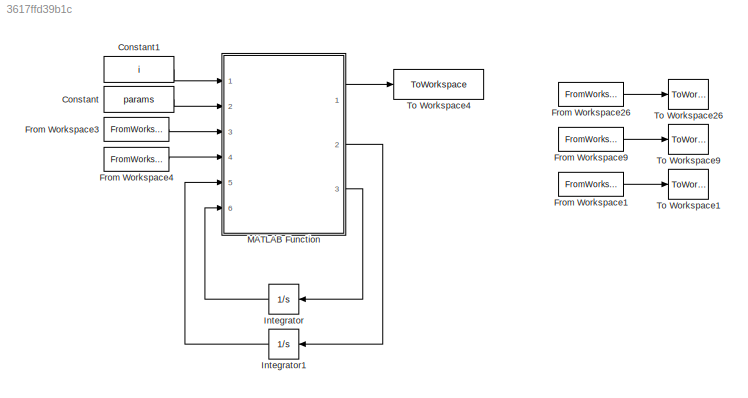
MODEL slx_3617ffd39b1c
KIND model
CONFIG AbsTol = auto
CONFIG EnableMultiTasking = off
CONFIG FixedStep = dtsim
CONFIG MaxStep = auto
CONFIG MinStep = auto
CONFIG RelTol = 1e-3
CONFIG SampleTimeConstraint = Unconstrained
CONFIG SolverName = VariableStepAuto
CONFIG StartTime = 0.0
CONFIG StopTime = totaltime
WORKSPACE source: mxarray member
WORKSPACE unnamed = 0
BLOCK [Constant] Constant
  Value = params
BLOCK [Constant] Constant1
  Value = i
BLOCK [FromWorkspace] From Workspace1
  VariableName = [t_data F_data]
BLOCK [FromWorkspace] From Workspace26
  VariableName = [t_data x_data]
BLOCK [FromWorkspace] From Workspace3
  VariableName = [t_data x_data]
BLOCK [FromWorkspace] From Workspace4
  VariableName = [t_data dx_data]
BLOCK [FromWorkspace] From Workspace9
  VariableName = [t_data dx_data]
BLOCK [Integrator] Integrator
  NameLocation = top
  Ports = [1, 1]
BLOCK [Integrator] Integrator1
  NameLocation = top
  Ports = [1, 1]
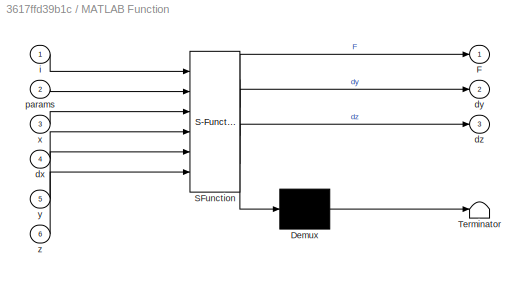
BLOCK [SubSystem] MATLAB Function
  ErrorFcn = Stateflow.Translate.translate
  PermitHierarchicalResolution = ExplicitOnly
  Ports = [6, 3]
  RequestExecContextInheritance = off
  SFBlockType = MATLAB Function
  TreatAsAtomicUnit = on
BLOCK [Demux] MATLAB Function/ Demux 
  Outputs = 1
  Ports = [1, 1]
BLOCK [S-Function] MATLAB Function/ SFunction 
  EnableBusSupport = on
  FunctionName = sf_sfun
  PortCounts = [6 4]
  Ports = [6, 4]
  SFcnIsStateOwnerBlock = off
  SFunctionDeploymentMode = off
  Tag = Stateflow S-Function 8
BLOCK [Terminator] MATLAB Function/ Terminator 
BLOCK [Outport] MATLAB Function/F
BLOCK [Inport] MATLAB Function/dx
  Port = 4
BLOCK [Outport] MATLAB Function/dy
  Port = 2
BLOCK [Outport] MATLAB Function/dz
  Port = 3
BLOCK [Inport] MATLAB Function/i
BLOCK [Inport] MATLAB Function/params
  Port = 2
BLOCK [Inport] MATLAB Function/x
  Port = 3
BLOCK [Inport] MATLAB Function/y
  Port = 5
BLOCK [Inport] MATLAB Function/z
  Port = 6
BLOCK [ToWorkspace] To Workspace1
  FixptAsFi = on
  MaxDataPoints = inf
  Ports = [1]
  SampleTime = -1
  SaveFormat = Timeseries
  VariableName = F_lab
BLOCK [ToWorkspace] To Workspace26
  FixptAsFi = on
  MaxDataPoints = inf
  Ports = [1]
  SampleTime = -1
  SaveFormat = Timeseries
  VariableName = x
BLOCK [ToWorkspace] To Workspace4
  FixptAsFi = on
  MaxDataPoints = inf
  Ports = [1]
  SampleTime = -1
  SaveFormat = Timeseries
  VariableName = F_AMR
BLOCK [ToWorkspace] To Workspace9
  FixptAsFi = on
  MaxDataPoints = inf
  Ports = [1]
  SampleTime = -1
  SaveFormat = Timeseries
  VariableName = dx
LINE Constant1:1 -> MATLAB Function:1
LINE Constant:1 -> MATLAB Function:2
LINE From Workspace1:1 -> To Workspace1:1
LINE From Workspace26:1 -> To Workspace26:1
LINE From Workspace3:1 -> MATLAB Function:3
LINE From Workspace4:1 -> MATLAB Function:4
LINE From Workspace9:1 -> To Workspace9:1
LINE Integrator1:1 -> MATLAB Function:5
LINE Integrator:1 -> MATLAB Function:6
LINE MATLAB Function:1 -> To Workspace4:1
LINE MATLAB Function:2 -> Integrator1:1
LINE MATLAB Function:3 -> Integrator:1
CHART MATLAB Function states=1 transitions=1
  STATE_LABEL 'eML_blk_kernel()'
  STATE_LABEL 'SCRIPT:\nfunction [F,dy,dz] = fcn(i,params,x,dx,y,z)\n    A        = 300;   \n    k0       = 0;               %N/mm\n    k1       = 0;               %N/mm\n    x0       = 0;               %mm\n    n        = 2;   \n    alpha    = params(1);       %N/mm\n    beta     = params(2);       %mm^-2\n    gamma    = beta;            %mm^-2\n    c0       = params(3);       %Ns/mm\n    c1       = params(4);       %Ns/m...<+162ch>'
CHART  states=0 transitions=0
